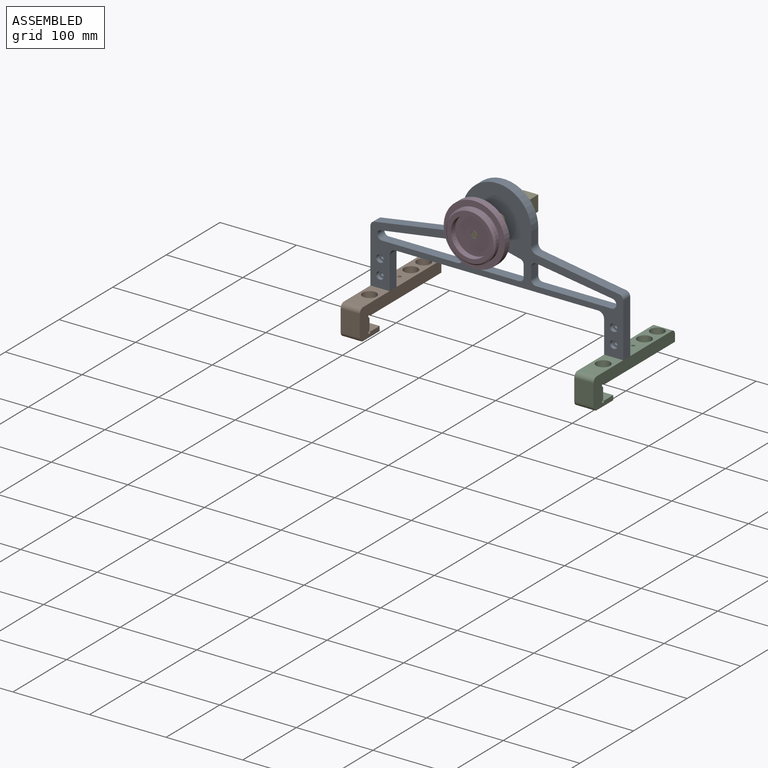
[diagram: assembled view]
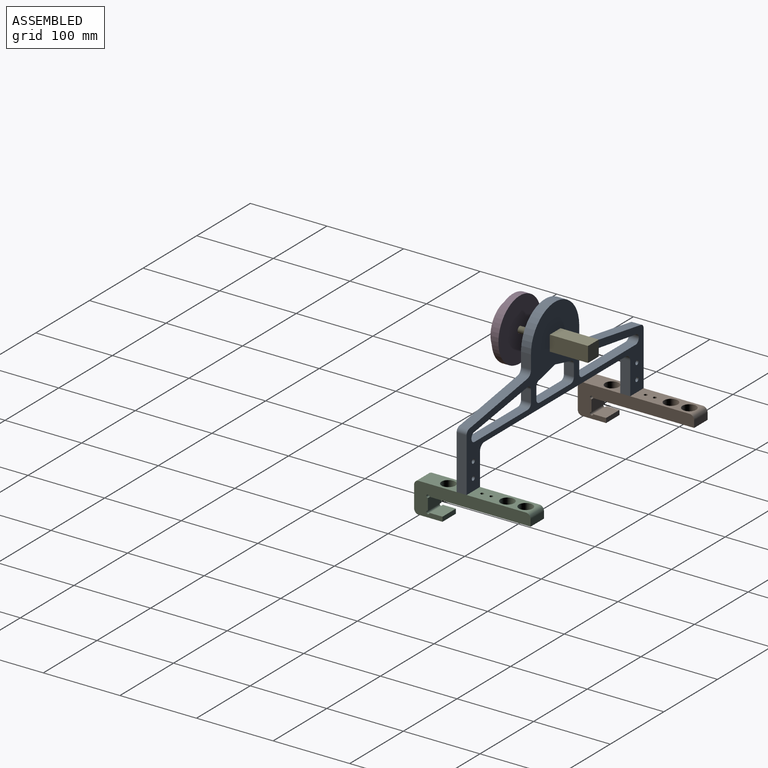
[diagram: assembled view, second angle]
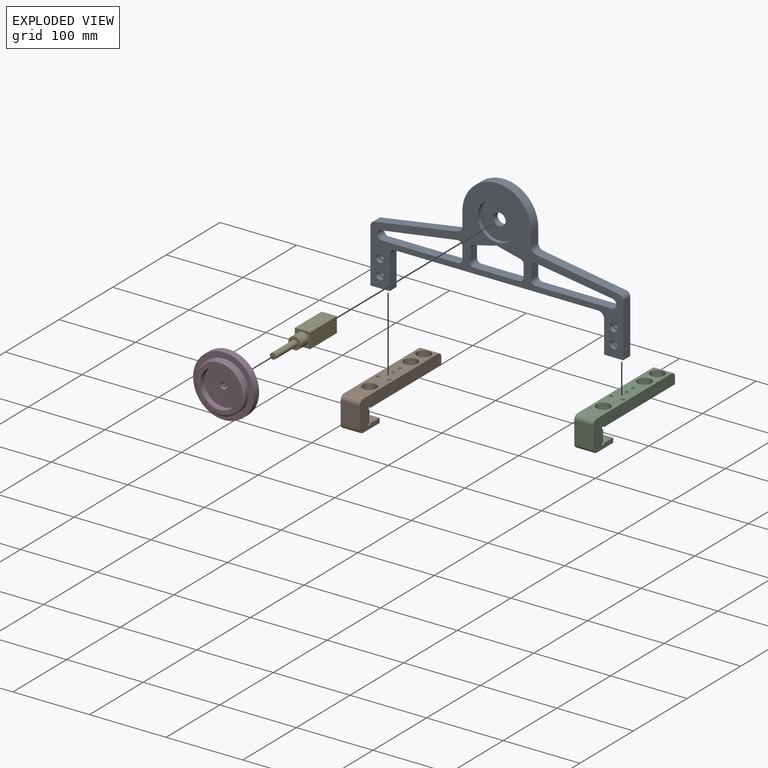
[diagram: exploded view]
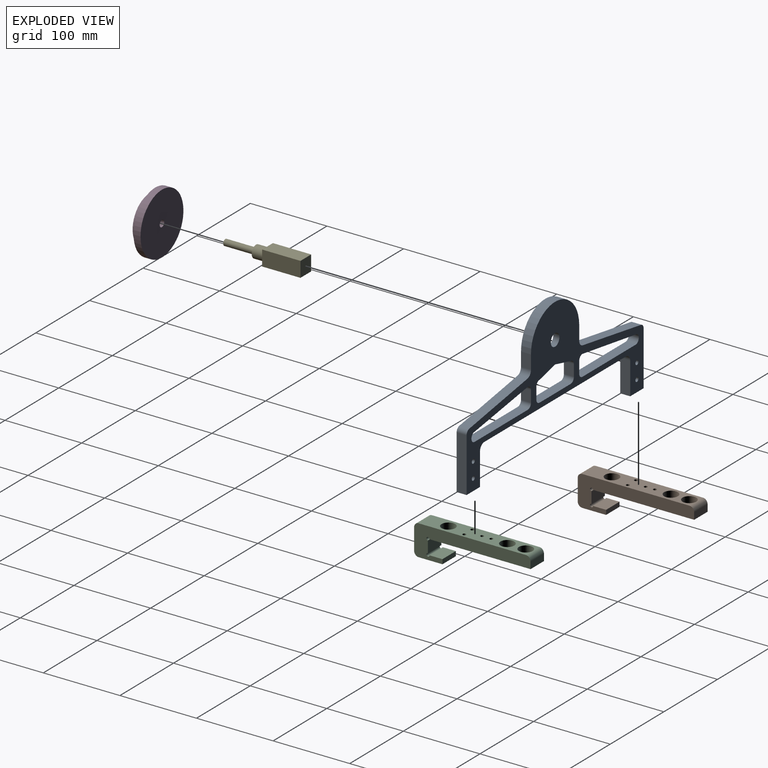
[diagram: exploded view, second angle]
ASSEMBLY  parts=5 mates=4
PART A: 65 faces, bbox 330x13x165 mm
  f0: plane 330x165mm, normal (0,-1,0), area 11905.3mm2, adj f2,f3,f4,f5,f6,f7,f8,f9
  f1: plane 330x165mm, normal (0,1,0), area 13871.3mm2, adj f2,f3,f4,f5,f6,f7,f8,f9
  f2: plane 70.44x13mm, normal (1,0,0), area 915.8mm2, adj f0,f1,f5,f17
  f3: plane 70.68x13mm, normal (-1,0,0), area 918.9mm2, adj f0,f1,f4,f18
  f4: plane 25x13mm, normal (0,0,-1), area 297.3mm2, adj f0,f1,f3,f8,f62,f64
  f5: plane 25x13mm, normal (0,0,-1), area 297.3mm2, adj f0,f1,f2,f6,f58,f60
  f6: plane 42x13mm, normal (-1,0,0), area 546mm2, adj f0,f1,f5,f19
  f7: plane 264x13mm, normal (0,0,-1), area 3432mm2, adj f0,f1,f19,f20
  f8: plane 42x13mm, normal (1,0,0), area 546mm2, adj f0,f1,f4,f20
  f9: plane 18.18x13mm, normal (-1,0,0), area 236.3mm2, adj f0,f1,f13,f22
  f10: plane 108.21x17.31mm, normal (-0.16,0,0.99), area 1424.6mm2, adj f0,f1,f18,f22
  f11: plane 108.24x17.54mm, normal (0.16,0,0.99), area 1425.5mm2, adj f0,f1,f17,f21
  f12: plane 18.19x13mm, normal (1,0,0), area 236.5mm2, adj f0,f1,f13,f21
  f13: cylinder r=45mm len=90mm, axis (0,-1,0), area 1837.8mm2, adj f0,f1,f9,f12
  f14: cylinder r=8mm len=16mm, axis (0,-1,0), area 402.1mm2, adj f1,f16
  f15: cylinder r=25mm len=50mm, axis (0,-1,0), area 785.4mm2, adj f0,f16
  f16: plane 50x50mm, normal (0,-1,0), area 1762.4mm2, adj f14,f15
  f17: cylinder r=6mm len=13mm, axis (0,-1,0), area 110mm2, adj f0,f1,f2,f11
  f18: cylinder r=6mm len=13mm, axis (0,-1,0), area 110.1mm2, adj f0,f1,f3,f10
  f19: cylinder r=8mm len=13mm, axis (0,-1,0), area 163.4mm2, adj f0,f1,f6,f7
  f20: cylinder r=8mm len=13mm, axis (0,1,0), area 163.4mm2, adj f0,f1,f7,f8
  f21: cylinder r=8mm len=13mm, axis (0,-1,0), area 146.7mm2, adj f0,f1,f11,f12
  f22: cylinder r=8mm len=13mm, axis (0,-1,0), area 146.9mm2, adj f0,f1,f9,f10
  f23: cylinder r=6mm len=13mm, axis (0,-1,0), area 122.5mm2, adj f0,f1,f37,f43
  f24: cylinder r=6mm len=13mm, axis (0,-1,0), area 122.5mm2, adj f0,f1,f39,f44
  f25: plane 15x13mm, normal (-1,0,0), area 195mm2, adj f0,f1,f26,f30
  f26: cylinder r=6mm len=13mm, axis (0,-1,0), area 146mm2, adj f0,f1,f25,f27
  f27: plane 97.22x14.73mm, normal (0.15,0,-0.99), area 1278.3mm2, adj f0,f1,f26,f28
  f28: cylinder r=6mm len=13mm, axis (0,-1,0), area 245mm2, adj f0,f1,f27,f29
  f29: plane 99x13mm, normal (0,0,1), area 1287mm2, adj f0,f1,f28,f30
  f30: cylinder r=6mm len=13mm, axis (0,-1,0), area 122.5mm2, adj f0,f1,f25,f29
  f31: cylinder r=6mm len=13mm, axis (0,-1,0), area 146mm2, adj f0,f1,f32,f36
  f32: plane 15x13mm, normal (1,0,0), area 195mm2, adj f0,f1,f31,f33
  f33: cylinder r=6mm len=13mm, axis (0,-1,0), area 122.5mm2, adj f0,f1,f32,f34
  f34: plane 99x13mm, normal (0,0,1), area 1287mm2, adj f0,f1,f33,f35
  f35: cylinder r=6mm len=13mm, axis (0,-1,0), area 245mm2, adj f0,f1,f34,f36
  f36: plane 97.22x14.73mm, normal (-0.15,0,-0.99), area 1278.3mm2, adj f0,f1,f31,f35
  f37: plane 26.26x13mm, normal (0.23,0,-0.97), area 351.2mm2, adj f0,f1,f23,f38
  f38: cylinder r=6mm len=13mm, axis (0,-1,0), area 73.9mm2, adj f0,f1,f37,f39
  f39: plane 26.26x13mm, normal (-0.23,0,-0.97), area 351.2mm2, adj f0,f1,f24,f38
  f40: cylinder r=6mm len=13mm, axis (0,-1,0), area 122.5mm2, adj f0,f1,f41,f43
  f41: plane 58x13mm, normal (0,0,1), area 754mm2, adj f0,f1,f40,f42
  f42: cylinder r=6mm len=13mm, axis (0,-1,0), area 122.5mm2, adj f0,f1,f41,f44
  f43: plane 15x13mm, normal (1,0,0), area 195mm2, adj f0,f1,f23,f40
  f44: plane 15x13mm, normal (-1,0,0), area 195mm2, adj f0,f1,f24,f42
  f45: cylinder r=2.75mm len=8mm, axis (0,-1,0), area 138.2mm2, adj f1,f46
  f46: plane 9.75x9.75mm, normal (0,-1,0), area 50.9mm2, adj f45,f47
  f47: cylinder r=4.88mm len=9.75mm, axis (0,-1,0), area 153.2mm2, adj f0,f46
  f48: cylinder r=2.75mm len=8mm, axis (0,-1,0), area 138.2mm2, adj f1,f49
  f49: plane 9.75x9.75mm, normal (0,-1,0), area 50.9mm2, adj f48,f50
  f50: cylinder r=4.88mm len=9.75mm, axis (0,-1,0), area 153.2mm2, adj f0,f49
  f51: cylinder r=2.75mm len=8mm, axis (0,-1,0), area 138.2mm2, adj f1,f52
  f52: plane 9.75x9.75mm, normal (0,-1,0), area 50.9mm2, adj f51,f53
  f53: cylinder r=4.88mm len=9.75mm, axis (0,-1,0), area 153.2mm2, adj f0,f52
  f54: cylinder r=2.75mm len=8mm, axis (0,-1,0), area 138.2mm2, adj f1,f55
  f55: plane 9.75x9.75mm, normal (0,-1,0), area 50.9mm2, adj f54,f56
  f56: cylinder r=4.88mm len=9.75mm, axis (0,-1,0), area 153.2mm2, adj f0,f55
  f57: cone r=0mm half-angle=59deg, axis (0,0,-1), area 16.2mm2, adj f58
  f58: cylinder r=2.1mm len=20mm, axis (0,0,-1), area 263.9mm2, adj f5,f57
  f59: cone r=0mm half-angle=59deg, axis (0,0,-1), area 16.2mm2, adj f60
  f60: cylinder r=2.1mm len=20mm, axis (0,0,-1), area 263.9mm2, adj f5,f59
  f61: cone r=0mm half-angle=59deg, axis (0,0,-1), area 16.2mm2, adj f62
  f62: cylinder r=2.1mm len=20mm, axis (0,0,-1), area 263.9mm2, adj f4,f61
  f63: cone r=0mm half-angle=59deg, axis (0,0,-1), area 16.2mm2, adj f64
  f64: cylinder r=2.1mm len=20mm, axis (0,0,-1), area 263.9mm2, adj f4,f63
PART B: 30 faces, bbox 152x25x40 mm
  f0: plane 25x17mm, normal (0,0,1), area 425mm2, adj f1,f8,f9,f10
  f1: plane 25x6mm, normal (-1,0,0), area 150mm2, adj f0,f2,f8,f9
  f2: plane 31x25mm, normal (0,0,-1), area 775mm2, adj f1,f8,f9,f24
  f3: plane 28x25mm, normal (1,0,0), area 700mm2, adj f8,f9,f24,f25
  f4: plane 140x25mm, normal (0,0,1), area 2675.8mm2, adj f8,f9,f12,f15,f18,f21,f22,f23
  f5: plane 25x9mm, normal (-1,0,0), area 225mm2, adj f6,f8,f9,f26
  f6: plane 132x25mm, normal (0,0,-1), area 2322.8mm2, adj f5,f8,f9,f11,f14,f17,f20,f21
  f7: plane 25x15mm, normal (-1,0,0), area 375mm2, adj f8,f9,f10,f11
  f8: plane 152x40mm, normal (0,-1,0), area 2802mm2, adj f0,f1,f2,f3,f4,f5,f6,f7
  f9: plane 152x40mm, normal (0,1,0), area 2802mm2, adj f0,f1,f2,f3,f4,f5,f6,f7
  f10: cylinder r=2mm len=25mm, axis (0,-1,0), area 235.6mm2, adj f0,f7,f8,f9
  f11: cylinder r=2mm len=25mm, axis (0,-1,0), area 235.6mm2, adj f6,f7,f8,f9
  f12: cylinder r=2.2mm len=11mm, axis (0,0,-1), area 152.1mm2, adj f4,f13
  f13: plane 8.25x8.25mm, normal (0,0,-1), area 38.3mm2, adj f12,f14
  f14: cylinder r=4.12mm len=8.25mm, axis (0,0,-1), area 103.7mm2, adj f6,f13
  f15: cylinder r=2.2mm len=11mm, axis (0,0,-1), area 152.1mm2, adj f4,f16
  f16: plane 8.25x8.25mm, normal (0,0,-1), area 38.3mm2, adj f15,f17
  f17: cylinder r=4.12mm len=8.25mm, axis (0,0,-1), area 103.7mm2, adj f6,f16
  f18: cylinder r=2.2mm len=11mm, axis (0,0,-1), area 152.1mm2, adj f4,f19
  f19: plane 8.25x8.25mm, normal (0,0,-1), area 38.3mm2, adj f18,f20
  f20: cylinder r=4.12mm len=8.25mm, axis (0,0,-1), area 103.7mm2, adj f6,f19
  f21: cylinder r=9mm len=18mm, axis (0,0,1), area 848.2mm2, adj f4,f6
  f22: cylinder r=9mm len=18mm, axis (0,0,1), area 848.2mm2, adj f4,f6
  f23: cylinder r=9mm len=18mm, axis (0,0,1), area 848.2mm2, adj f4,f6
  f24: cylinder r=6mm len=25mm, axis (0,1,0), area 235.6mm2, adj f2,f3,f8,f9
  f25: cylinder r=6mm len=25mm, axis (0,1,0), area 235.6mm2, adj f3,f4,f8,f9
  f26: cylinder r=6mm len=25mm, axis (0,1,0), area 235.6mm2, adj f4,f5,f8,f9
  f27: cylinder r=2.2mm len=11mm, axis (0,0,-1), area 152.1mm2, adj f4,f28
  f28: plane 8.25x8.25mm, normal (0,0,-1), area 38.3mm2, adj f27,f29
  f29: cylinder r=4.12mm len=8.25mm, axis (0,0,-1), area 103.7mm2, adj f6,f28
PART C: same geometry as B
PART D: 9 faces, bbox 80x17x80 mm
  f0: cylinder r=40mm len=80mm, axis (0,1,0), area 2261.9mm2, adj f1,f2
  f1: plane 80x80mm, normal (0,-1,0), area 1708.2mm2, adj f0,f3
  f2: plane 80x80mm, normal (0,1,0), area 4969.8mm2, adj f0,f7
  f3: cylinder r=32.5mm len=65mm, axis (0,1,0), area 1225.2mm2, adj f1,f8
  f4: plane 61x61mm, normal (0,-1,0), area 959mm2, adj f5,f8
  f5: cylinder r=25mm len=50mm, axis (0,-1,0), area 1256.6mm2, adj f4,f6
  f6: plane 50x50mm, normal (0,-1,0), area 1906.8mm2, adj f5,f7
  f7: cylinder r=4.25mm len=9mm, axis (0,-1,0), area 240.3mm2, adj f2,f6
  f8: cone r=30.5mm half-angle=45deg, axis (0,1,0), area 559.8mm2, adj f3,f4
PART E: 10 faces, bbox 20x105x20 mm
  f0: plane 50x20mm, normal (0,0,1), area 1000mm2, adj f1,f3,f4,f5
  f1: plane 50x20mm, normal (-1,0,0), area 1000mm2, adj f0,f2,f4,f5
  f2: plane 50x20mm, normal (0,0,-1), area 1000mm2, adj f1,f3,f4,f5
  f3: plane 50x20mm, normal (1,0,0), area 1000mm2, adj f0,f2,f4,f5
  f4: plane 20x20mm, normal (0,-1,0), area 198.9mm2, adj f0,f1,f2,f3,f6
  f5: plane 20x20mm, normal (0,1,0), area 400mm2, adj f0,f1,f2,f3
  f6: cylinder r=8mm len=16mm, axis (0,1,0), area 754mm2, adj f4,f7
  f7: plane 16x16mm, normal (0,-1,0), area 150.8mm2, adj f6,f8
  f8: cylinder r=4mm len=40mm, axis (0,1,0), area 1005.3mm2, adj f7,f9
  f9: plane 8x8mm, normal (0,-1,0), area 50.3mm2, adj f8
PLACE A t=(-21.45,3.02,15.85)mm
PLACE B rot(axis=(0,0,-1),90deg) t=(-161.45,-28.48,-109.15)mm
PLACE C rot(axis=(0,0,-1),90deg) t=(143.55,-28.48,-109.15)mm
PLACE D t=(-21.45,-42.98,50.85)mm
PLACE E t=(-31.45,53.02,40.85)mm
MATE fastened B.f15 <-> A.f61  axis (0,0,1) through (-166.45,-3.48,-69.15)mm
MATE fastened C.f15 <-> A.f59  axis (0,0,1) through (138.55,-3.48,-69.15)mm
MATE fastened E.f6 <-> A.f13  axis (0,-1,0) through (-21.45,3.02,50.85)mm
MATE fastened D.f0 <-> E.f6  axis (0,-1,0) through (-21.45,-51.98,50.85)mm
